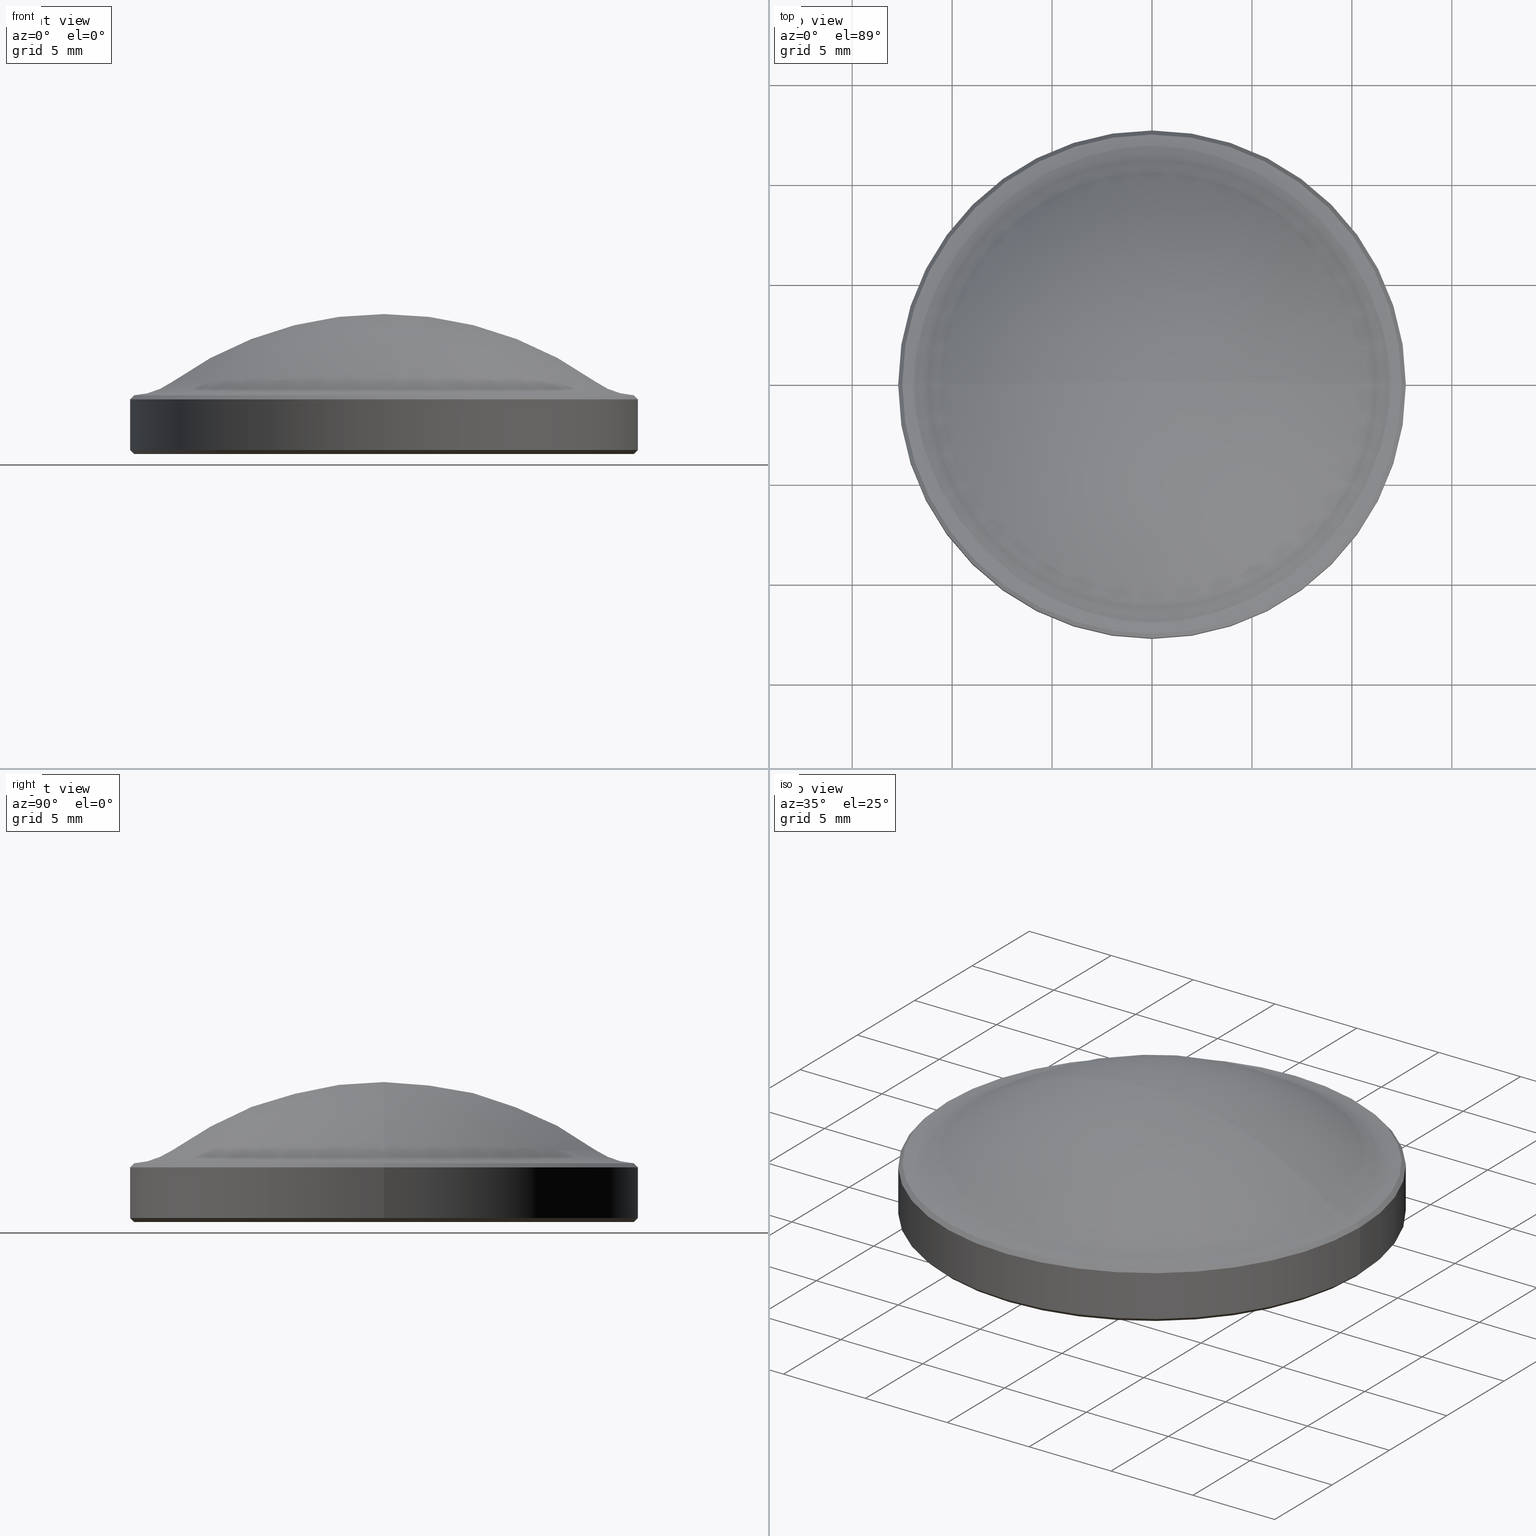
[diagram: canonical four-view strip — front | top / right | iso, engineering-drawing reading convention]
A machine part, canonical four-view strip (front | top / right | iso — engineering-drawing reading convention). The complete STEP part file that produces these views, byte-faithful:
ISO-10303-21;
HEADER;
FILE_DESCRIPTION (( 'STEP AP214' ),
    '1' );
FILE_NAME ('GL7AL1-025-012.STEP',
    '2024-07-21T09:13:33',
    ( '' ),
    ( '' ),
    'SwSTEP 2.0',
    'SolidWorks 2022',
    '' );
FILE_SCHEMA (( 'AUTOMOTIVE_DESIGN' ));
ENDSEC;

DATA;
#1 = ADVANCED_FACE ( 'NONE', ( #135 ), #18, .F. ) ;
#2 = CIRCLE ( 'NONE', #274, 12.69999999999999929 ) ;
#3 = CIRCLE ( 'NONE', #173, 12.49999999999998224 ) ;
#4 = DIRECTION ( 'NONE',  ( -0.000000000000000000, -0.000000000000000000, -1.000000000000000000 ) ) ;
#5 = CIRCLE ( 'NONE', #151, 12.69999999999999929 ) ;
#6 = DIRECTION ( 'NONE',  ( 0.000000000000000000, 0.000000000000000000, 1.000000000000000000 ) ) ;
#7 = PRODUCT_RELATED_PRODUCT_CATEGORY ( 'part', '', ( #192 ) ) ;
#8 = VERTEX_POINT ( 'NONE', #225 ) ;
#9 = DIRECTION ( 'NONE',  ( -1.000000000000000000, 0.000000000000000000, 0.000000000000000000 ) ) ;
#10 = CYLINDRICAL_SURFACE ( 'NONE', #104, 12.69999999999999929 ) ;
#11 = AXIS2_PLACEMENT_3D ( 'NONE', #249, #6, #110 ) ;
#12 = AXIS2_PLACEMENT_3D ( 'NONE', #270, #55, #246 ) ;
#13 = ORIENTED_EDGE ( 'NONE', *, *, #282, .T. ) ;
#14 = VERTEX_POINT ( 'NONE', #114 ) ;
#15 = CARTESIAN_POINT ( 'NONE',  ( 12.49410307713545087, 1.530086334163102642E-15, 2.935896922864571046 ) ) ;
#16 = DIRECTION ( 'NONE',  ( 1.000000000000000000, 0.000000000000000000, 0.000000000000000000 ) ) ;
#17 = DIRECTION ( 'NONE',  ( -1.224646799147353207E-16, -0.000000000000000000, -1.000000000000000000 ) ) ;
#18 = TOROIDAL_SURFACE ( 'NONE', #269, 12.69999999999999929, 3.597496314496318792 ) ;
#19 = ORIENTED_EDGE ( 'NONE', *, *, #244, .T. ) ;
#20 = CARTESIAN_POINT ( 'NONE',  ( -10.60895851618369967, 0.000000000000000000, 3.600121168435617580 ) ) ;
#21 = APPLICATION_PROTOCOL_DEFINITION ( 'draft international standard', 'automotive_design', 1998, #65 ) ;
#22 = DIRECTION ( 'NONE',  ( -0.000000000000000000, -0.000000000000000000, 1.000000000000000000 ) ) ;
#23 = ORIENTED_EDGE ( 'NONE', *, *, #232, .T. ) ;
#24 = PRESENTATION_STYLE_ASSIGNMENT (( #118 ) ) ;
#25 = AXIS2_PLACEMENT_3D ( 'NONE', #84, #179, #301 ) ;
#26 = AXIS2_PLACEMENT_3D ( 'NONE', #121, #95, #243 ) ;
#27 = CARTESIAN_POINT ( 'NONE',  ( 0.000000000000000000, 0.000000000000000000, 0.000000000000000000 ) ) ;
#28 = ADVANCED_FACE ( 'NONE', ( #205 ), #255, .F. ) ;
#29 = ORIENTED_EDGE ( 'NONE', *, *, #221, .T. ) ;
#30 = SURFACE_STYLE_USAGE ( .BOTH. , #125 ) ;
#31 = FACE_OUTER_BOUND ( 'NONE', #186, .T. ) ;
#32 = AXIS2_PLACEMENT_3D ( 'NONE', #80, #154, #296 ) ;
#33 = EDGE_LOOP ( 'NONE', ( #149, #230, #168, #216 ) ) ;
#34 = ADVANCED_FACE ( 'NONE', ( #228 ), #196, .F. ) ;
#35 = COLOUR_RGB ( '',1.000000000000000000, 1.000000000000000000, 1.000000000000000000 ) ;
#36 = ADVANCED_FACE ( 'NONE', ( #88 ), #279, .T. ) ;
#37 = EDGE_LOOP ( 'NONE', ( #156, #239, #59 ) ) ;
#38 = DIRECTION ( 'NONE',  ( -0.7071067811865440200, 0.000000000000000000, -0.7071067811865511255 ) ) ;
#39 = CARTESIAN_POINT ( 'NONE',  ( 0.000000000000000000, 0.000000000000000000, 2.930000000000000160 ) ) ;
#40 = EDGE_LOOP ( 'NONE', ( #207, #120, #141, #134 ) ) ;
#41 = ORIENTED_EDGE ( 'NONE', *, *, #244, .F. ) ;
#42 = MECHANICAL_DESIGN_GEOMETRIC_PRESENTATION_REPRESENTATION (  '', ( #99 ), #210 ) ;
#43 = FACE_OUTER_BOUND ( 'NONE', #40, .T. ) ;
#44 = LINE ( 'NONE', #175, #91 ) ;
#45 = EDGE_CURVE ( 'NONE', #14, #174, #127, .T. ) ;
#46 = VERTEX_POINT ( 'NONE', #305 ) ;
#47 = SURFACE_STYLE_FILL_AREA ( #286 ) ;
#48 = SURFACE_STYLE_FILL_AREA ( #190 ) ;
#49 = DIRECTION ( 'NONE',  ( 1.224646799147353207E-16, -0.000000000000000000, 1.000000000000000000 ) ) ;
#50 = DIRECTION ( 'NONE',  ( -1.000000000000000000, 0.000000000000000000, 1.226362234330445841E-16 ) ) ;
#51 = ORIENTED_EDGE ( 'NONE', *, *, #176, .T. ) ;
#52 = CARTESIAN_POINT ( 'NONE',  ( 0.000000000000000000, 0.000000000000000000, 0.000000000000000000 ) ) ;
#53 = ORIENTED_EDGE ( 'NONE', *, *, #247, .F. ) ;
#54 = CONICAL_SURFACE ( 'NONE', #223, 12.69999999999999929, 0.7853981633974439491 ) ;
#55 = DIRECTION ( 'NONE',  ( 1.224646799147353207E-16, -0.000000000000000000, 1.000000000000000000 ) ) ;
#56 = DIRECTION ( 'NONE',  ( -0.000000000000000000, -0.000000000000000000, -1.000000000000000000 ) ) ;
#57 = AXIS2_PLACEMENT_3D ( 'NONE', #122, #49, #73 ) ;
#58 = DIRECTION ( 'NONE',  ( 1.000000000000000000, 0.000000000000000000, 0.000000000000000000 ) ) ;
#59 = ORIENTED_EDGE ( 'NONE', *, *, #106, .F. ) ;
#60 = ADVANCED_FACE ( 'NONE', ( #61 ), #10, .T. ) ;
#61 = FACE_OUTER_BOUND ( 'NONE', #256, .T. ) ;
#62 = DIRECTION ( 'NONE',  ( -0.000000000000000000, -0.000000000000000000, -1.000000000000000000 ) ) ;
#63 = CARTESIAN_POINT ( 'NONE',  ( -12.69999999999999929, 0.000000000000000000, 6.527496314496318064 ) ) ;
#64 = CARTESIAN_POINT ( 'NONE',  ( 0.000000000000000000, 0.000000000000000000, 6.527496314496316288 ) ) ;
#65 = APPLICATION_CONTEXT ( 'automotive_design' ) ;
#66 = CARTESIAN_POINT ( 'NONE',  ( -12.49410307714051882, 0.000000000000000000, 2.935896922863991954 ) ) ;
#67 = SPHERICAL_SURFACE ( 'NONE', #257, 18.25199999999999889 ) ;
#68 = MECHANICAL_DESIGN_GEOMETRIC_PRESENTATION_REPRESENTATION (  '', ( #197 ), #152 ) ;
#69 = CARTESIAN_POINT ( 'NONE',  ( 0.000000000000000000, 0.000000000000000000, 2.730000000000021299 ) ) ;
#70 = CARTESIAN_POINT ( 'NONE',  ( 0.000000000000000000, 0.000000000000000000, 0.2000000000000196065 ) ) ;
#71 = EDGE_CURVE ( 'NONE', #14, #181, #177, .T. ) ;
#72 = ORIENTED_EDGE ( 'NONE', *, *, #198, .F. ) ;
#73 = DIRECTION ( 'NONE',  ( 1.000000000000000000, 0.000000000000000000, -1.388433779733579211E-16 ) ) ;
#74 = DIRECTION ( 'NONE',  ( -0.7071067811865444641, 8.659560562354895880E-17, 0.7071067811865505703 ) ) ;
#75 = AXIS2_PLACEMENT_3D ( 'NONE', #309, #240, #263 ) ;
#76 = ORIENTED_EDGE ( 'NONE', *, *, #194, .T. ) ;
#77 = AXIS2_PLACEMENT_3D ( 'NONE', #202, #253, #284 ) ;
#78 = DIRECTION ( 'NONE',  ( 1.000000000000000000, 0.000000000000000000, 0.000000000000000000 ) ) ;
#79 = CIRCLE ( 'NONE', #119, 12.49999999999998224 ) ;
#80 = CARTESIAN_POINT ( 'NONE',  ( -4.398440698781394997E-16, 0.000000000000000000, 2.935896922864572822 ) ) ;
#81 = UNCERTAINTY_MEASURE_WITH_UNIT (LENGTH_MEASURE( 1.000000000000000082E-05 ), #226, 'distance_accuracy_value', 'NONE');
#82 = APPLICATION_CONTEXT ( 'automotive_design' ) ;
#83 = ADVANCED_FACE ( 'NONE', ( #204 ), #254, .T. ) ;
#84 = CARTESIAN_POINT ( 'NONE',  ( 0.000000000000000000, 0.000000000000000000, -11.25199999999999889 ) ) ;
#85 = CARTESIAN_POINT ( 'NONE',  ( 0.000000000000000000, 0.000000000000000000, 2.930000000000000160 ) ) ;
#86 = LINE ( 'NONE', #183, #136 ) ;
#87 = VERTEX_POINT ( 'NONE', #302 ) ;
#88 = FACE_OUTER_BOUND ( 'NONE', #37, .T. ) ;
#89 = EDGE_CURVE ( 'NONE', #235, #211, #86, .T. ) ;
#90 = LINE ( 'NONE', #103, #112 ) ;
#91 = VECTOR ( 'NONE', #147, 1000.000000000000227 ) ;
#92 = VECTOR ( 'NONE', #38, 999.9999999999998863 ) ;
#93 = EDGE_CURVE ( 'NONE', #277, #181, #157, .T. ) ;
#94 = FACE_OUTER_BOUND ( 'NONE', #124, .T. ) ;
#95 = DIRECTION ( 'NONE',  ( 0.000000000000000000, 0.000000000000000000, 1.000000000000000000 ) ) ;
#96 = FILL_AREA_STYLE_COLOUR ( '', #35 ) ;
#97 = ORIENTED_EDGE ( 'NONE', *, *, #308, .T. ) ;
#98 = PRESENTATION_STYLE_ASSIGNMENT (( #30 ) ) ;
#99 = STYLED_ITEM ( 'NONE', ( #24 ), #212 ) ;
#100 =( NAMED_UNIT ( * ) SI_UNIT ( $, .STERADIAN. ) SOLID_ANGLE_UNIT ( ) );
#101 = LINE ( 'NONE', #285, #130 ) ;
#102 = EDGE_LOOP ( 'NONE', ( #76, #13, #288, #251 ) ) ;
#103 = CARTESIAN_POINT ( 'NONE',  ( -12.69999999999999929, 0.000000000000000000, 2.930000000000000160 ) ) ;
#104 = AXIS2_PLACEMENT_3D ( 'NONE', #85, #62, #111 ) ;
#105 = DIRECTION ( 'NONE',  ( -0.000000000000000000, -0.000000000000000000, -1.000000000000000000 ) ) ;
#106 = EDGE_CURVE ( 'NONE', #181, #174, #107, .T. ) ;
#107 = CIRCLE ( 'NONE', #315, 10.60895851618369967 ) ;
#108 = COLOUR_RGB ( '',1.000000000000000000, 1.000000000000000000, 1.000000000000000000 ) ;
#109 = DIRECTION ( 'NONE',  ( -1.000000000000000000, 0.000000000000000000, 1.224646799147353207E-16 ) ) ;
#110 = DIRECTION ( 'NONE',  ( 1.000000000000000000, 0.000000000000000000, -0.000000000000000000 ) ) ;
#111 = DIRECTION ( 'NONE',  ( -1.000000000000000000, 0.000000000000000000, 0.000000000000000000 ) ) ;
#112 = VECTOR ( 'NONE', #56, 1000.000000000000000 ) ;
#113 = DIRECTION ( 'NONE',  ( 0.000000000000000000, -1.000000000000000000, 0.000000000000000000 ) ) ;
#114 = CARTESIAN_POINT ( 'NONE',  ( 1.117612668901874404E-15, 0.000000000000000000, 6.999999999999999112 ) ) ;
#115 = EDGE_CURVE ( 'NONE', #87, #281, #101, .T. ) ;
#116 = EDGE_LOOP ( 'NONE', ( #23, #260 ) ) ;
#117 = DIRECTION ( 'NONE',  ( -1.224646799147353207E-16, 0.000000000000000000, -1.000000000000000000 ) ) ;
#118 = SURFACE_STYLE_USAGE ( .BOTH. , #145 ) ;
#119 = AXIS2_PLACEMENT_3D ( 'NONE', #52, #4, #58 ) ;
#120 = ORIENTED_EDGE ( 'NONE', *, *, #232, .F. ) ;
#121 = CARTESIAN_POINT ( 'NONE',  ( 0.000000000000000000, 0.000000000000000000, 0.000000000000000000 ) ) ;
#122 = CARTESIAN_POINT ( 'NONE',  ( -4.398440698782108916E-16, 0.000000000000000000, 2.935896922863990177 ) ) ;
#123 = PRODUCT_CONTEXT ( 'NONE', #65, 'mechanical' ) ;
#124 = EDGE_LOOP ( 'NONE', ( #293, #220, #72 ) ) ;
#125 = SURFACE_SIDE_STYLE ('',( #47 ) ) ;
#126 = DIRECTION ( 'NONE',  ( -0.000000000000000000, -0.000000000000000000, 1.000000000000000000 ) ) ;
#127 = CIRCLE ( 'NONE', #25, 18.25199999999999889 ) ;
#128 = LINE ( 'NONE', #15, #283 ) ;
#129 = VERTEX_POINT ( 'NONE', #265 ) ;
#130 = VECTOR ( 'NONE', #74, 1000.000000000000227 ) ;
#131 = PRODUCT_DEFINITION_CONTEXT ( 'detailed design', #82, 'design' ) ;
#132 = DIRECTION ( 'NONE',  ( -1.224646799147353207E-16, -0.000000000000000000, -1.000000000000000000 ) ) ;
#133 = CIRCLE ( 'NONE', #57, 12.49410307713541712 ) ;
#134 = ORIENTED_EDGE ( 'NONE', *, *, #176, .F. ) ;
#135 = FACE_OUTER_BOUND ( 'NONE', #102, .T. ) ;
#136 = VECTOR ( 'NONE', #276, 1000.000000000000000 ) ;
#137 = ORIENTED_EDGE ( 'NONE', *, *, #115, .T. ) ;
#138 = EDGE_CURVE ( 'NONE', #8, #235, #2, .T. ) ;
#139 = CARTESIAN_POINT ( 'NONE',  ( 0.000000000000000000, 0.000000000000000000, 0.2000000000000196065 ) ) ;
#140 = DIRECTION ( 'NONE',  ( 0.000000000000000000, 0.000000000000000000, -1.000000000000000000 ) ) ;
#141 = ORIENTED_EDGE ( 'NONE', *, *, #188, .T. ) ;
#142 = DIRECTION ( 'NONE',  ( -0.000000000000000000, -0.000000000000000000, 1.000000000000000000 ) ) ;
#143 = AXIS2_PLACEMENT_3D ( 'NONE', #261, #289, #50 ) ;
#144 = ORIENTED_EDGE ( 'NONE', *, *, #318, .F. ) ;
#145 = SURFACE_SIDE_STYLE ('',( #48 ) ) ;
#146 = ORIENTED_EDGE ( 'NONE', *, *, #155, .F. ) ;
#147 = DIRECTION ( 'NONE',  ( 0.7071067811865444641, 0.000000000000000000, 0.7071067811865505703 ) ) ;
#148 = PRODUCT_DEFINITION_SHAPE ( 'NONE', 'NONE',  #295 ) ;
#149 = ORIENTED_EDGE ( 'NONE', *, *, #259, .F. ) ;
#150 = ADVANCED_FACE ( 'NONE', ( #193 ), #172, .T. ) ;
#151 = AXIS2_PLACEMENT_3D ( 'NONE', #139, #22, #187 ) ;
#152 =( GEOMETRIC_REPRESENTATION_CONTEXT ( 3 ) GLOBAL_UNCERTAINTY_ASSIGNED_CONTEXT ( ( #195 ) ) GLOBAL_UNIT_ASSIGNED_CONTEXT ( ( #264, #153, #100 ) ) REPRESENTATION_CONTEXT ( 'NONE', 'WORKASPACE' ) );
#153 =( NAMED_UNIT ( * ) PLANE_ANGLE_UNIT ( ) SI_UNIT ( $, .RADIAN. ) );
#154 = DIRECTION ( 'NONE',  ( -1.224646799147353207E-16, 0.000000000000000000, -1.000000000000000000 ) ) ;
#155 = EDGE_CURVE ( 'NONE', #211, #281, #280, .T. ) ;
#156 = ORIENTED_EDGE ( 'NONE', *, *, #71, .F. ) ;
#157 = CIRCLE ( 'NONE', #241, 3.597496314496318792 ) ;
#158 = CIRCLE ( 'NONE', #224, 12.69999999999999929 ) ;
#159 = CARTESIAN_POINT ( 'NONE',  ( 0.000000000000000000, 0.000000000000000000, 6.527496314496316288 ) ) ;
#160 = CARTESIAN_POINT ( 'NONE',  ( 0.000000000000000000, 0.000000000000000000, -11.25199999999999889 ) ) ;
#161 = CARTESIAN_POINT ( 'NONE',  ( -12.49410307713545087, 0.000000000000000000, 2.935896922864574599 ) ) ;
#162 = DIRECTION ( 'NONE',  ( 0.000000000000000000, 0.000000000000000000, -1.000000000000000000 ) ) ;
#163 = EDGE_LOOP ( 'NONE', ( #248, #299, #199, #250 ) ) ;
#164 = DIRECTION ( 'NONE',  ( 0.7071067811865436870, 8.659560562354887252E-17, -0.7071067811865513475 ) ) ;
#165 = CIRCLE ( 'NONE', #77, 3.597496314496318348 ) ;
#166 = CARTESIAN_POINT ( 'NONE',  ( 8.206617439655612360E-17, 0.000000000000000000, 3.600121168435616248 ) ) ;
#167 = CARTESIAN_POINT ( 'NONE',  ( 10.60895851618369967, 1.414654521538122764E-15, 3.600121168435614916 ) ) ;
#168 = ORIENTED_EDGE ( 'NONE', *, *, #318, .T. ) ;
#169 = CARTESIAN_POINT ( 'NONE',  ( 0.000000000000000000, 0.000000000000000000, -11.25199999999999889 ) ) ;
#170 = FILL_AREA_STYLE_COLOUR ( '', #108 ) ;
#171 = DIRECTION ( 'NONE',  ( -1.000000000000000000, 0.000000000000000000, 9.504292548634709852E-17 ) ) ;
#172 = CONICAL_SURFACE ( 'NONE', #290, 12.69999999999999929, 0.7853981633974439491 ) ;
#173 = AXIS2_PLACEMENT_3D ( 'NONE', #27, #105, #78 ) ;
#174 = VERTEX_POINT ( 'NONE', #167 ) ;
#175 = CARTESIAN_POINT ( 'NONE',  ( 12.69999999999999929, 0.000000000000000000, 0.2000000000000196065 ) ) ;
#176 = EDGE_CURVE ( 'NONE', #281, #211, #5, .T. ) ;
#177 = CIRCLE ( 'NONE', #217, 18.25199999999999889 ) ;
#178 = ORIENTED_EDGE ( 'NONE', *, *, #188, .F. ) ;
#179 = DIRECTION ( 'NONE',  ( -1.224646799147353207E-16, 1.000000000000000000, 1.499759782661857608E-32 ) ) ;
#180 = ADVANCED_FACE ( 'NONE', ( #43 ), #54, .T. ) ;
#181 = VERTEX_POINT ( 'NONE', #20 ) ;
#182 = PRESENTATION_LAYER_ASSIGNMENT (  '', '', ( #99 ) ) ;
#183 = CARTESIAN_POINT ( 'NONE',  ( 12.69999999999999929, 1.555301434917138038E-15, 2.930000000000000160 ) ) ;
#184 = UNCERTAINTY_MEASURE_WITH_UNIT (LENGTH_MEASURE( 1.000000000000000082E-05 ), #218, 'distance_accuracy_value', 'NONE');
#185 = ORIENTED_EDGE ( 'NONE', *, *, #138, .F. ) ;
#186 = EDGE_LOOP ( 'NONE', ( #41, #294, #185, #144 ) ) ;
#187 = DIRECTION ( 'NONE',  ( 1.000000000000000000, 0.000000000000000000, 0.000000000000000000 ) ) ;
#188 = EDGE_CURVE ( 'NONE', #129, #211, #44, .T. ) ;
#189 = DIRECTION ( 'NONE',  ( -0.000000000000000000, -0.000000000000000000, 1.000000000000000000 ) ) ;
#190 = FILL_AREA_STYLE ('',( #96 ) ) ;
#191 = CONICAL_SURFACE ( 'NONE', #32, 12.49410307713545087, 0.7853981633974430610 ) ;
#192 = PRODUCT ( 'GL7AL1-025-012', 'GL7AL1-025-012', '', ( #123 ) ) ;
#193 = FACE_OUTER_BOUND ( 'NONE', #273, .T. ) ;
#194 = EDGE_CURVE ( 'NONE', #277, #46, #133, .T. ) ;
#195 = UNCERTAINTY_MEASURE_WITH_UNIT (LENGTH_MEASURE( 1.000000000000000082E-05 ), #264, 'distance_accuracy_value', 'NONE');
#196 = TOROIDAL_SURFACE ( 'NONE', #298, 12.69999999999999929, 3.597496314496318792 ) ;
#197 = STYLED_ITEM ( 'NONE', ( #98 ), #275 ) ;
#198 = EDGE_CURVE ( 'NONE', #174, #181, #291, .T. ) ;
#199 = ORIENTED_EDGE ( 'NONE', *, *, #155, .T. ) ;
#200 = CARTESIAN_POINT ( 'NONE',  ( 0.000000000000000000, 0.000000000000000000, -11.25199999999999889 ) ) ;
#201 = ADVANCED_FACE ( 'NONE', ( #94 ), #67, .T. ) ;
#202 = CARTESIAN_POINT ( 'NONE',  ( 12.69999999999999929, 1.555301434917138433E-15, 6.527496314496314511 ) ) ;
#203 = ORIENTED_EDGE ( 'NONE', *, *, #93, .T. ) ;
#204 = FACE_OUTER_BOUND ( 'NONE', #163, .T. ) ;
#205 = FACE_OUTER_BOUND ( 'NONE', #116, .T. ) ;
#206 = DIRECTION ( 'NONE',  ( 0.000000000000000000, 1.000000000000000000, -0.000000000000000000 ) ) ;
#207 = ORIENTED_EDGE ( 'NONE', *, *, #115, .F. ) ;
#208 = ADVANCED_FACE ( 'NONE', ( #233 ), #252, .T. ) ;
#209 = LINE ( 'NONE', #161, #92 ) ;
#210 =( GEOMETRIC_REPRESENTATION_CONTEXT ( 3 ) GLOBAL_UNCERTAINTY_ASSIGNED_CONTEXT ( ( #184 ) ) GLOBAL_UNIT_ASSIGNED_CONTEXT ( ( #218, #314, #316 ) ) REPRESENTATION_CONTEXT ( 'NONE', 'WORKASPACE' ) );
#211 = VERTEX_POINT ( 'NONE', #313 ) ;
#212 = MANIFOLD_SOLID_BREP ( '����2', #310 ) ;
#213 = DIRECTION ( 'NONE',  ( -1.000000000000000000, 0.000000000000000000, 1.226362234330445841E-16 ) ) ;
#214 = SHAPE_DEFINITION_REPRESENTATION ( #148, #275 ) ;
#215 = DIRECTION ( 'NONE',  ( 1.000000000000000000, 0.000000000000000000, -1.365923996832131609E-16 ) ) ;
#216 = ORIENTED_EDGE ( 'NONE', *, *, #308, .F. ) ;
#217 = AXIS2_PLACEMENT_3D ( 'NONE', #160, #113, #162 ) ;
#218 =( LENGTH_UNIT ( ) NAMED_UNIT ( * ) SI_UNIT ( .MILLI., .METRE. ) );
#219 =( GEOMETRIC_REPRESENTATION_CONTEXT ( 3 ) GLOBAL_UNCERTAINTY_ASSIGNED_CONTEXT ( ( #81 ) ) GLOBAL_UNIT_ASSIGNED_CONTEXT ( ( #226, #312, #268 ) ) REPRESENTATION_CONTEXT ( 'NONE', 'WORKASPACE' ) );
#220 = ORIENTED_EDGE ( 'NONE', *, *, #71, .T. ) ;
#221 = EDGE_CURVE ( 'NONE', #8, #281, #90, .T. ) ;
#222 = ORIENTED_EDGE ( 'NONE', *, *, #89, .F. ) ;
#223 = AXIS2_PLACEMENT_3D ( 'NONE', #287, #126, #16 ) ;
#224 = AXIS2_PLACEMENT_3D ( 'NONE', #69, #117, #311 ) ;
#225 = CARTESIAN_POINT ( 'NONE',  ( -12.69999999999999929, 0.000000000000000000, 2.730000000000023075 ) ) ;
#226 =( LENGTH_UNIT ( ) NAMED_UNIT ( * ) SI_UNIT ( .MILLI., .METRE. ) );
#227 = DIRECTION ( 'NONE',  ( -0.000000000000000000, -0.000000000000000000, -1.000000000000000000 ) ) ;
#228 = FACE_OUTER_BOUND ( 'NONE', #267, .T. ) ;
#229 = DIRECTION ( 'NONE',  ( -1.224646799147353207E-16, -0.000000000000000000, -1.000000000000000000 ) ) ;
#230 = ORIENTED_EDGE ( 'NONE', *, *, #194, .F. ) ;
#231 = DIRECTION ( 'NONE',  ( -1.224646799147353207E-16, 0.000000000000000000, -1.000000000000000000 ) ) ;
#232 = EDGE_CURVE ( 'NONE', #129, #87, #79, .T. ) ;
#233 = FACE_OUTER_BOUND ( 'NONE', #33, .T. ) ;
#234 = ADVANCED_FACE ( 'NONE', ( #31 ), #191, .T. ) ;
#235 = VERTEX_POINT ( 'NONE', #245 ) ;
#236 = PRODUCT_DEFINITION_FORMATION_WITH_SPECIFIED_SOURCE ( '�κ�', '', #192, .NOT_KNOWN. ) ;
#237 = DIRECTION ( 'NONE',  ( 1.000000000000000000, 0.000000000000000000, 0.000000000000000000 ) ) ;
#238 = CARTESIAN_POINT ( 'NONE',  ( 0.000000000000000000, 0.000000000000000000, 2.730000000000021299 ) ) ;
#239 = ORIENTED_EDGE ( 'NONE', *, *, #45, .T. ) ;
#240 = DIRECTION ( 'NONE',  ( -1.224646799147353207E-16, 0.000000000000000000, -1.000000000000000000 ) ) ;
#241 = AXIS2_PLACEMENT_3D ( 'NONE', #63, #292, #140 ) ;
#242 = PRESENTATION_LAYER_ASSIGNMENT (  '', '', ( #197 ) ) ;
#243 = DIRECTION ( 'NONE',  ( 1.000000000000000000, 0.000000000000000000, 0.000000000000000000 ) ) ;
#244 = EDGE_CURVE ( 'NONE', #46, #277, #304, .T. ) ;
#245 = CARTESIAN_POINT ( 'NONE',  ( 12.69999999999999929, 1.555301434917138038E-15, 2.730000000000019522 ) ) ;
#246 = DIRECTION ( 'NONE',  ( 1.000000000000000000, 0.000000000000000000, -1.388433779733579211E-16 ) ) ;
#247 = EDGE_CURVE ( 'NONE', #87, #129, #3, .T. ) ;
#248 = ORIENTED_EDGE ( 'NONE', *, *, #138, .T. ) ;
#249 = CARTESIAN_POINT ( 'NONE',  ( 0.000000000000000000, 0.000000000000000000, 0.000000000000000000 ) ) ;
#250 = ORIENTED_EDGE ( 'NONE', *, *, #221, .F. ) ;
#251 = ORIENTED_EDGE ( 'NONE', *, *, #93, .F. ) ;
#252 = CONICAL_SURFACE ( 'NONE', #75, 12.49410307713545087, 0.7853981633974430610 ) ;
#253 = DIRECTION ( 'NONE',  ( -1.224646799147353207E-16, 1.000000000000000000, 1.499759782661857608E-32 ) ) ;
#254 = CYLINDRICAL_SURFACE ( 'NONE', #271, 12.69999999999999929 ) ;
#255 = PLANE ( 'NONE',  #11 ) ;
#256 = EDGE_LOOP ( 'NONE', ( #222, #97, #29, #51 ) ) ;
#257 = AXIS2_PLACEMENT_3D ( 'NONE', #169, #206, #171 ) ;
#258 = CARTESIAN_POINT ( 'NONE',  ( 0.000000000000000000, 0.000000000000000000, 0.2000000000000196065 ) ) ;
#259 = EDGE_CURVE ( 'NONE', #46, #235, #128, .T. ) ;
#260 = ORIENTED_EDGE ( 'NONE', *, *, #247, .T. ) ;
#261 = CARTESIAN_POINT ( 'NONE',  ( 8.206617439655612360E-17, 0.000000000000000000, 3.600121168435616248 ) ) ;
#262 = APPLICATION_PROTOCOL_DEFINITION ( 'draft international standard', 'automotive_design', 1998, #82 ) ;
#263 = DIRECTION ( 'NONE',  ( -1.000000000000000000, 0.000000000000000000, 1.388433779733575513E-16 ) ) ;
#264 =( LENGTH_UNIT ( ) NAMED_UNIT ( * ) SI_UNIT ( .MILLI., .METRE. ) );
#265 = CARTESIAN_POINT ( 'NONE',  ( 12.49999999999998224, 0.000000000000000000, 0.000000000000000000 ) ) ;
#266 = DIRECTION ( 'NONE',  ( 1.000000000000000000, 0.000000000000000000, 0.000000000000000000 ) ) ;
#267 = EDGE_LOOP ( 'NONE', ( #317, #19, #203, #306 ) ) ;
#268 =( NAMED_UNIT ( * ) SI_UNIT ( $, .STERADIAN. ) SOLID_ANGLE_UNIT ( ) );
#269 = AXIS2_PLACEMENT_3D ( 'NONE', #64, #229, #109 ) ;
#270 = CARTESIAN_POINT ( 'NONE',  ( -4.398440698782108916E-16, 0.000000000000000000, 2.935896922863990177 ) ) ;
#271 = AXIS2_PLACEMENT_3D ( 'NONE', #39, #227, #9 ) ;
#272 = DIRECTION ( 'NONE',  ( 0.000000000000000000, 1.000000000000000000, -0.000000000000000000 ) ) ;
#273 = EDGE_LOOP ( 'NONE', ( #53, #137, #146, #178 ) ) ;
#274 = AXIS2_PLACEMENT_3D ( 'NONE', #238, #231, #215 ) ;
#275 = ADVANCED_BREP_SHAPE_REPRESENTATION ( 'GL7AL1-025-012', ( #212, #26 ), #219 ) ;
#276 = DIRECTION ( 'NONE',  ( -0.000000000000000000, -0.000000000000000000, -1.000000000000000000 ) ) ;
#277 = VERTEX_POINT ( 'NONE', #66 ) ;
#278 = CARTESIAN_POINT ( 'NONE',  ( -12.69999999999999929, 0.000000000000000000, 0.2000000000000196065 ) ) ;
#279 = SPHERICAL_SURFACE ( 'NONE', #303, 18.25199999999999889 ) ;
#280 = CIRCLE ( 'NONE', #297, 12.69999999999999929 ) ;
#281 = VERTEX_POINT ( 'NONE', #278 ) ;
#282 = EDGE_CURVE ( 'NONE', #46, #174, #165, .T. ) ;
#283 = VECTOR ( 'NONE', #164, 1000.000000000000000 ) ;
#284 = DIRECTION ( 'NONE',  ( -1.000000000000000000, -1.224646799147353700E-16, 0.000000000000000000 ) ) ;
#285 = CARTESIAN_POINT ( 'NONE',  ( -12.69999999999999929, 1.555301434917138433E-15, 0.2000000000000196065 ) ) ;
#286 = FILL_AREA_STYLE ('',( #170 ) ) ;
#287 = CARTESIAN_POINT ( 'NONE',  ( 0.000000000000000000, 0.000000000000000000, 0.2000000000000196065 ) ) ;
#288 = ORIENTED_EDGE ( 'NONE', *, *, #198, .T. ) ;
#289 = DIRECTION ( 'NONE',  ( -1.224646799147353207E-16, -0.000000000000000000, -1.000000000000000000 ) ) ;
#290 = AXIS2_PLACEMENT_3D ( 'NONE', #70, #142, #237 ) ;
#291 = CIRCLE ( 'NONE', #143, 10.60895851618369967 ) ;
#292 = DIRECTION ( 'NONE',  ( 0.000000000000000000, -1.000000000000000000, 0.000000000000000000 ) ) ;
#293 = ORIENTED_EDGE ( 'NONE', *, *, #45, .F. ) ;
#294 = ORIENTED_EDGE ( 'NONE', *, *, #259, .T. ) ;
#295 = PRODUCT_DEFINITION ( 'δ֪', '', #236, #131 ) ;
#296 = DIRECTION ( 'NONE',  ( -1.000000000000000000, 0.000000000000000000, 1.388433779733575513E-16 ) ) ;
#297 = AXIS2_PLACEMENT_3D ( 'NONE', #258, #189, #266 ) ;
#298 = AXIS2_PLACEMENT_3D ( 'NONE', #159, #132, #307 ) ;
#299 = ORIENTED_EDGE ( 'NONE', *, *, #89, .T. ) ;
#300 = DIRECTION ( 'NONE',  ( -1.000000000000000000, 0.000000000000000000, 9.504292548634709852E-17 ) ) ;
#301 = DIRECTION ( 'NONE',  ( -1.000000000000000000, -1.224646799147353207E-16, 0.000000000000000000 ) ) ;
#302 = CARTESIAN_POINT ( 'NONE',  ( -12.49999999999998224, 1.543054966925663892E-15, 0.000000000000000000 ) ) ;
#303 = AXIS2_PLACEMENT_3D ( 'NONE', #200, #272, #300 ) ;
#304 = CIRCLE ( 'NONE', #12, 12.49410307713541712 ) ;
#305 = CARTESIAN_POINT ( 'NONE',  ( 12.49410307714051882, 1.530086334163723081E-15, 2.935896922863988845 ) ) ;
#306 = ORIENTED_EDGE ( 'NONE', *, *, #106, .T. ) ;
#307 = DIRECTION ( 'NONE',  ( -1.000000000000000000, 0.000000000000000000, 1.224646799147353207E-16 ) ) ;
#308 = EDGE_CURVE ( 'NONE', #235, #8, #158, .T. ) ;
#309 = CARTESIAN_POINT ( 'NONE',  ( -4.398440698781394997E-16, 0.000000000000000000, 2.935896922864572822 ) ) ;
#310 = CLOSED_SHELL ( 'NONE', ( #234, #150, #36, #1, #83, #60, #28, #34, #201, #180, #208 ) ) ;
#311 = DIRECTION ( 'NONE',  ( 1.000000000000000000, 0.000000000000000000, -1.365923996832131609E-16 ) ) ;
#312 =( NAMED_UNIT ( * ) PLANE_ANGLE_UNIT ( ) SI_UNIT ( $, .RADIAN. ) );
#313 = CARTESIAN_POINT ( 'NONE',  ( 12.69999999999999929, 1.555301434917138038E-15, 0.2000000000000196065 ) ) ;
#314 =( NAMED_UNIT ( * ) PLANE_ANGLE_UNIT ( ) SI_UNIT ( $, .RADIAN. ) );
#315 = AXIS2_PLACEMENT_3D ( 'NONE', #166, #17, #213 ) ;
#316 =( NAMED_UNIT ( * ) SI_UNIT ( $, .STERADIAN. ) SOLID_ANGLE_UNIT ( ) );
#317 = ORIENTED_EDGE ( 'NONE', *, *, #282, .F. ) ;
#318 = EDGE_CURVE ( 'NONE', #277, #8, #209, .T. ) ;
ENDSEC;
END-ISO-10303-21;
